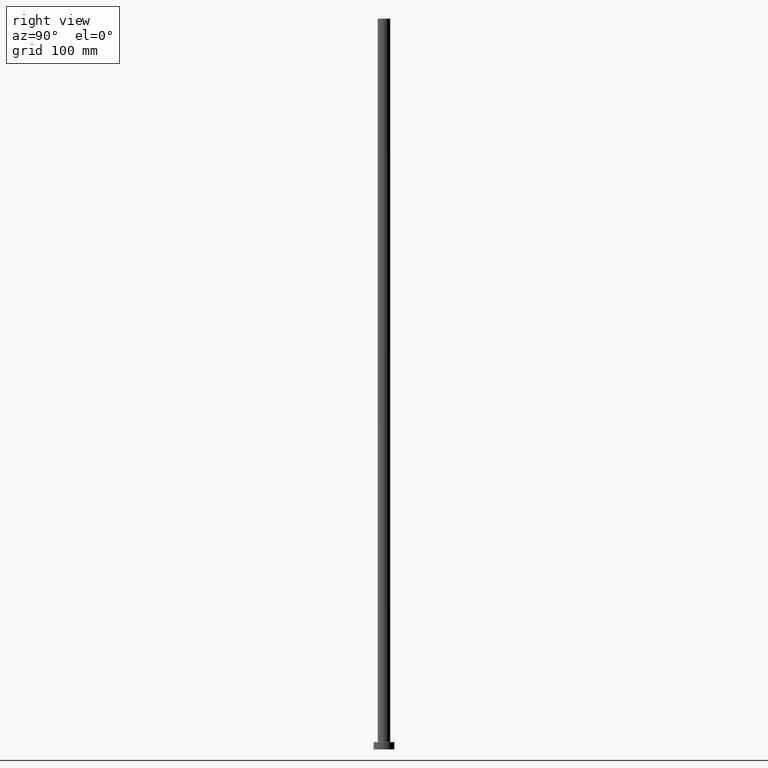
[diagram: clean part render]
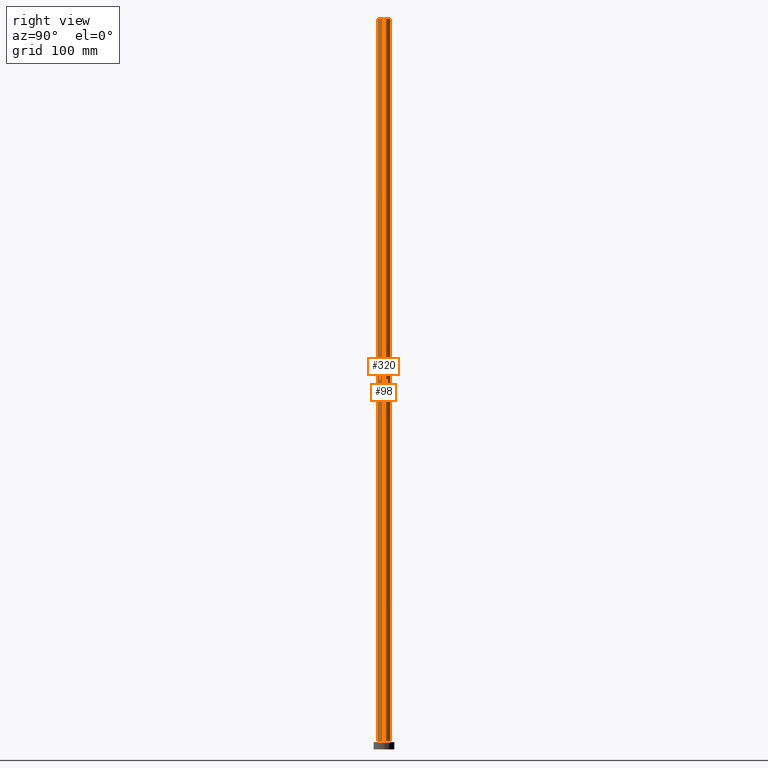
[diagram: same view with one multi-face feature highlighted, each face labeled with its STEP entity id]
A machine part, right view. The highlighted faces form ONE feature: a constant-radius fillet chain: 2 tangent blend faces with common blend radius 6 mm. The faces share edges in the B-rep.
Their STEP definitions:
[1] entity #98 (Cylinder):
#10 = CARTESIAN_POINT ( 'NONE',  ( -6.000000000000000888, 0.000000000000000000, 700.0000000000000000 ) ) ;
#42 = DIRECTION ( 'NONE',  ( -0.000000000000000000, -0.000000000000000000, -1.000000000000000000 ) ) ;
#47 = EDGE_CURVE ( 'NONE', #100, #345, #367, .T. ) ;
#55 = DIRECTION ( 'NONE',  ( 0.000000000000000000, 0.000000000000000000, 1.000000000000000000 ) ) ;
#60 = EDGE_LOOP ( 'NONE', ( #453, #61, #212, #199 ) ) ;
#61 = ORIENTED_EDGE ( 'NONE', *, *, #202, .T. ) ;
#63 = AXIS2_PLACEMENT_3D ( 'NONE', #266, #343, #341 ) ;
#71 = VERTEX_POINT ( 'NONE', #261 ) ;
#87 = DIRECTION ( 'NONE',  ( 1.000000000000000000, 0.000000000000000000, 0.000000000000000000 ) ) ;
#98 = ADVANCED_FACE ( 'NONE', ( #150 ), #186, .T. ) ;
#100 = VERTEX_POINT ( 'NONE', #109 ) ;
#101 = VECTOR ( 'NONE', #332, 1000.000000000000000 ) ;
#109 = CARTESIAN_POINT ( 'NONE',  ( -6.000000000000000888, 0.000000000000000000, 700.0000000000000000 ) ) ;
#135 = VECTOR ( 'NONE', #42, 1000.000000000000000 ) ;
#150 = FACE_OUTER_BOUND ( 'NONE', #60, .T. ) ;
#153 = DIRECTION ( 'NONE',  ( -1.000000000000000000, 0.000000000000000000, 0.000000000000000000 ) ) ;
#176 = CIRCLE ( 'NONE', #63, 6.000000000000000888 ) ;
#186 = CYLINDRICAL_SURFACE ( 'NONE', #214, 6.000000000000000888 ) ;
#187 = CARTESIAN_POINT ( 'NONE',  ( 0.000000000000000000, 0.000000000000000000, 700.0000000000000000 ) ) ;
#188 = CARTESIAN_POINT ( 'NONE',  ( -6.000000000000000888, 0.000000000000000000, 7.499999999999951150 ) ) ;
#193 = CARTESIAN_POINT ( 'NONE',  ( 6.000000000000000888, 7.347880794884120722E-16, 700.0000000000000000 ) ) ;
#199 = ORIENTED_EDGE ( 'NONE', *, *, #47, .F. ) ;
#202 = EDGE_CURVE ( 'NONE', #349, #71, #366, .T. ) ;
#212 = ORIENTED_EDGE ( 'NONE', *, *, #415, .T. ) ;
#214 = AXIS2_PLACEMENT_3D ( 'NONE', #187, #215, #153 ) ;
#215 = DIRECTION ( 'NONE',  ( -0.000000000000000000, -0.000000000000000000, -1.000000000000000000 ) ) ;
#234 = CARTESIAN_POINT ( 'NONE',  ( 0.000000000000000000, 0.000000000000000000, 700.0000000000000000 ) ) ;
#251 = EDGE_CURVE ( 'NONE', #349, #100, #322, .T. ) ;
#261 = CARTESIAN_POINT ( 'NONE',  ( 6.000000000000000888, 7.347880794884120722E-16, 7.499999999999951150 ) ) ;
#266 = CARTESIAN_POINT ( 'NONE',  ( 0.000000000000000000, 0.000000000000000000, 7.499999999999951150 ) ) ;
#308 = AXIS2_PLACEMENT_3D ( 'NONE', #234, #55, #87 ) ;
#322 = CIRCLE ( 'NONE', #308, 6.000000000000000888 ) ;
#332 = DIRECTION ( 'NONE',  ( -0.000000000000000000, -0.000000000000000000, -1.000000000000000000 ) ) ;
#341 = DIRECTION ( 'NONE',  ( 1.000000000000000000, 0.000000000000000000, 0.000000000000000000 ) ) ;
#343 = DIRECTION ( 'NONE',  ( 0.000000000000000000, 0.000000000000000000, 1.000000000000000000 ) ) ;
#345 = VERTEX_POINT ( 'NONE', #188 ) ;
#349 = VERTEX_POINT ( 'NONE', #193 ) ;
#366 = LINE ( 'NONE', #443, #135 ) ;
#367 = LINE ( 'NONE', #10, #101 ) ;
#415 = EDGE_CURVE ( 'NONE', #71, #345, #176, .T. ) ;
#443 = CARTESIAN_POINT ( 'NONE',  ( 6.000000000000000888, 7.347880794884120722E-16, 700.0000000000000000 ) ) ;
#453 = ORIENTED_EDGE ( 'NONE', *, *, #251, .F. ) ;
[2] entity #320 (Cylinder):
#3 = EDGE_CURVE ( 'NONE', #100, #349, #290, .T. ) ;
#10 = CARTESIAN_POINT ( 'NONE',  ( -6.000000000000000888, 0.000000000000000000, 700.0000000000000000 ) ) ;
#28 = AXIS2_PLACEMENT_3D ( 'NONE', #267, #312, #224 ) ;
#31 = DIRECTION ( 'NONE',  ( 0.000000000000000000, 0.000000000000000000, 1.000000000000000000 ) ) ;
#34 = CIRCLE ( 'NONE', #54, 6.000000000000000888 ) ;
#37 = CARTESIAN_POINT ( 'NONE',  ( 0.000000000000000000, 0.000000000000000000, 700.0000000000000000 ) ) ;
#42 = DIRECTION ( 'NONE',  ( -0.000000000000000000, -0.000000000000000000, -1.000000000000000000 ) ) ;
#47 = EDGE_CURVE ( 'NONE', #100, #345, #367, .T. ) ;
#54 = AXIS2_PLACEMENT_3D ( 'NONE', #413, #31, #93 ) ;
#71 = VERTEX_POINT ( 'NONE', #261 ) ;
#93 = DIRECTION ( 'NONE',  ( 1.000000000000000000, 0.000000000000000000, 0.000000000000000000 ) ) ;
#100 = VERTEX_POINT ( 'NONE', #109 ) ;
#101 = VECTOR ( 'NONE', #332, 1000.000000000000000 ) ;
#109 = CARTESIAN_POINT ( 'NONE',  ( -6.000000000000000888, 0.000000000000000000, 700.0000000000000000 ) ) ;
#122 = ORIENTED_EDGE ( 'NONE', *, *, #455, .T. ) ;
#135 = VECTOR ( 'NONE', #42, 1000.000000000000000 ) ;
#144 = AXIS2_PLACEMENT_3D ( 'NONE', #37, #177, #394 ) ;
#164 = FACE_OUTER_BOUND ( 'NONE', #276, .T. ) ;
#167 = ORIENTED_EDGE ( 'NONE', *, *, #3, .F. ) ;
#175 = ORIENTED_EDGE ( 'NONE', *, *, #47, .T. ) ;
#177 = DIRECTION ( 'NONE',  ( 0.000000000000000000, 0.000000000000000000, 1.000000000000000000 ) ) ;
#188 = CARTESIAN_POINT ( 'NONE',  ( -6.000000000000000888, 0.000000000000000000, 7.499999999999951150 ) ) ;
#193 = CARTESIAN_POINT ( 'NONE',  ( 6.000000000000000888, 7.347880794884120722E-16, 700.0000000000000000 ) ) ;
#202 = EDGE_CURVE ( 'NONE', #349, #71, #366, .T. ) ;
#224 = DIRECTION ( 'NONE',  ( -1.000000000000000000, 0.000000000000000000, 0.000000000000000000 ) ) ;
#261 = CARTESIAN_POINT ( 'NONE',  ( 6.000000000000000888, 7.347880794884120722E-16, 7.499999999999951150 ) ) ;
#267 = CARTESIAN_POINT ( 'NONE',  ( 0.000000000000000000, 0.000000000000000000, 700.0000000000000000 ) ) ;
#276 = EDGE_LOOP ( 'NONE', ( #385, #167, #175, #122 ) ) ;
#290 = CIRCLE ( 'NONE', #144, 6.000000000000000888 ) ;
#304 = CYLINDRICAL_SURFACE ( 'NONE', #28, 6.000000000000000888 ) ;
#312 = DIRECTION ( 'NONE',  ( -0.000000000000000000, -0.000000000000000000, -1.000000000000000000 ) ) ;
#320 = ADVANCED_FACE ( 'NONE', ( #164 ), #304, .T. ) ;
#332 = DIRECTION ( 'NONE',  ( -0.000000000000000000, -0.000000000000000000, -1.000000000000000000 ) ) ;
#345 = VERTEX_POINT ( 'NONE', #188 ) ;
#349 = VERTEX_POINT ( 'NONE', #193 ) ;
#366 = LINE ( 'NONE', #443, #135 ) ;
#367 = LINE ( 'NONE', #10, #101 ) ;
#385 = ORIENTED_EDGE ( 'NONE', *, *, #202, .F. ) ;
#394 = DIRECTION ( 'NONE',  ( 1.000000000000000000, 0.000000000000000000, 0.000000000000000000 ) ) ;
#413 = CARTESIAN_POINT ( 'NONE',  ( 0.000000000000000000, 0.000000000000000000, 7.499999999999951150 ) ) ;
#443 = CARTESIAN_POINT ( 'NONE',  ( 6.000000000000000888, 7.347880794884120722E-16, 700.0000000000000000 ) ) ;
#455 = EDGE_CURVE ( 'NONE', #345, #71, #34, .T. ) ;